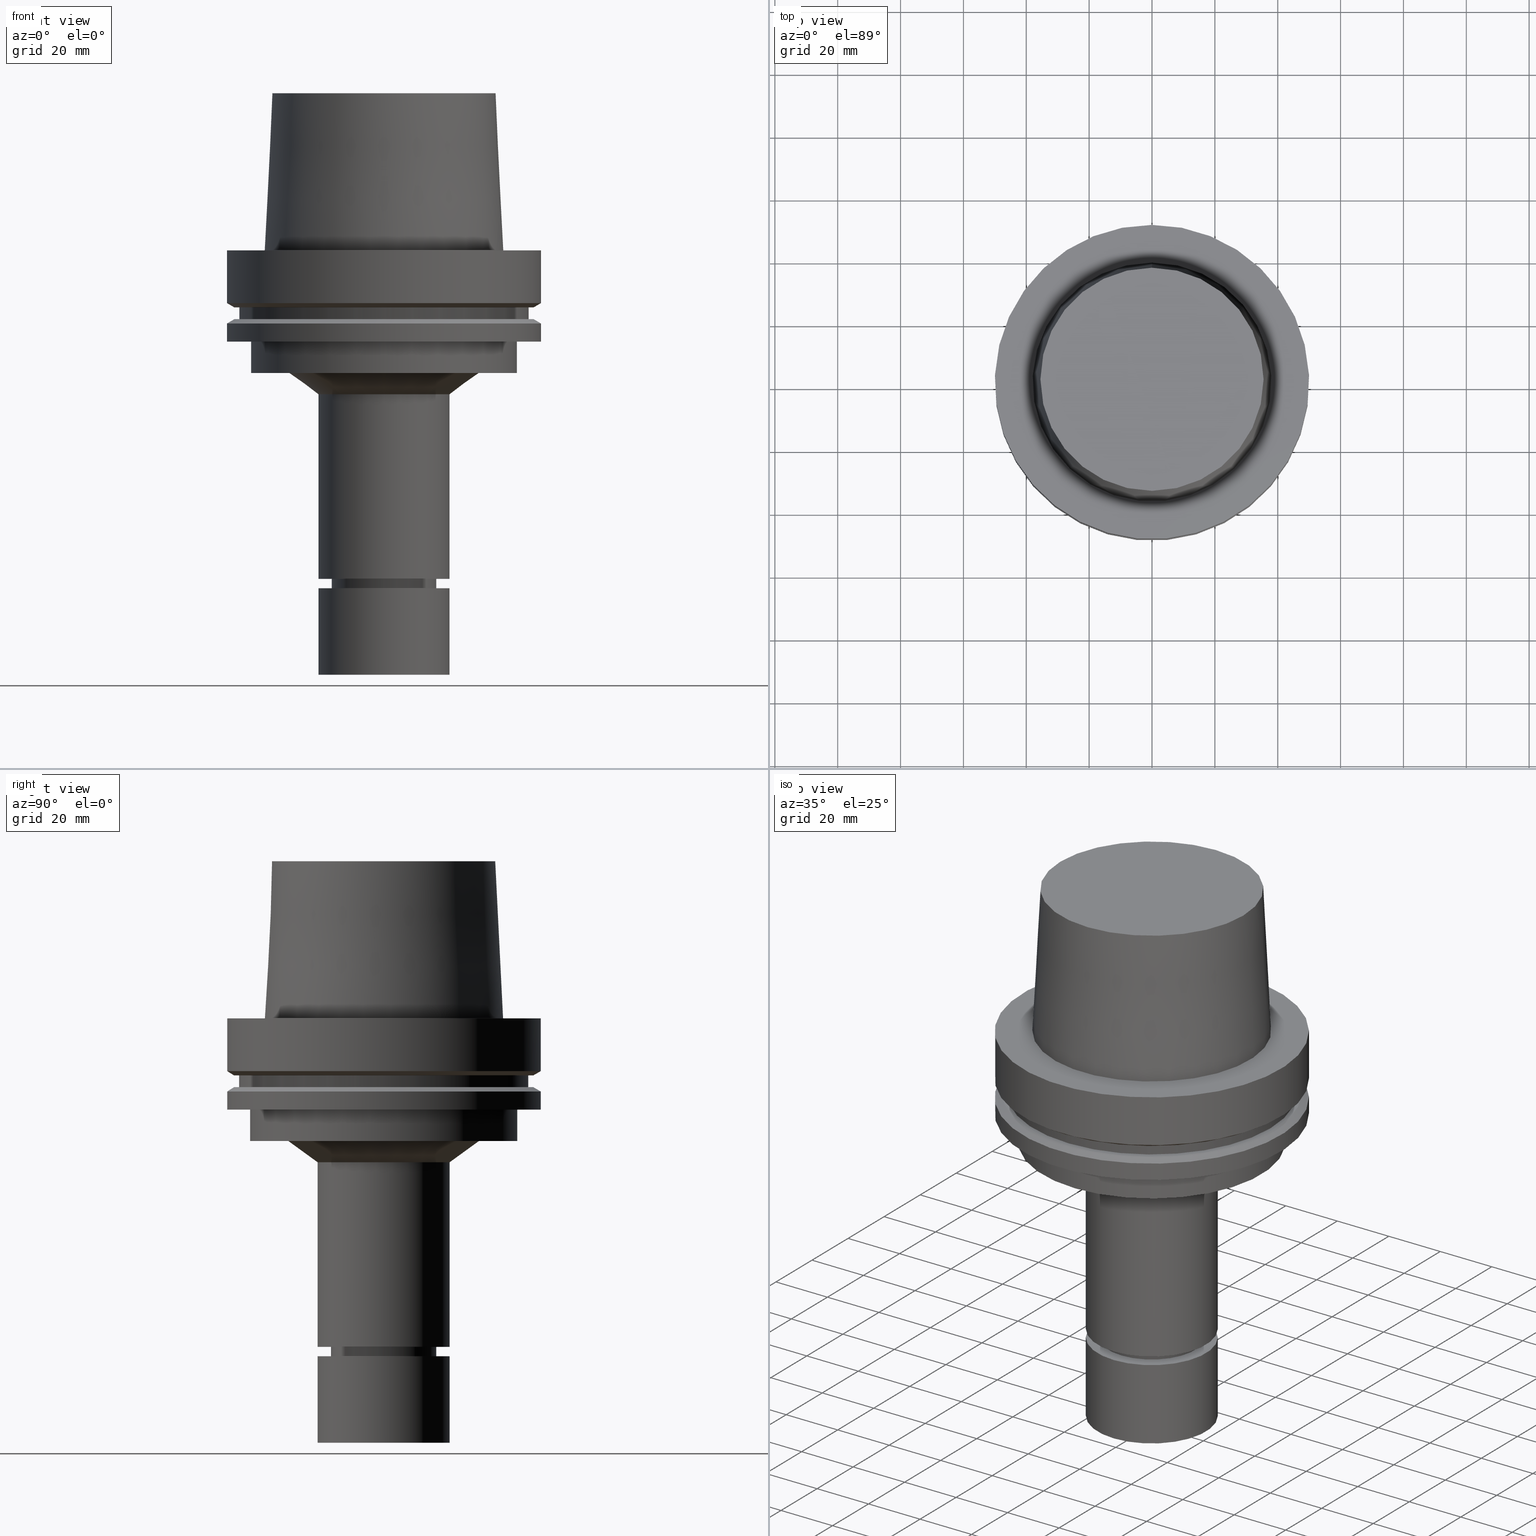
[diagram: canonical four-view strip — front | top / right | iso, engineering-drawing reading convention]
A machine part, canonical four-view strip (front | top / right | iso — engineering-drawing reading convention). The complete STEP part file that produces these views, byte-faithful:
ISO-10303-21;
HEADER;
FILE_DESCRIPTION((''),'1');
FILE_NAME('V:/90_\X2\53D65F9730C730FC30BF\X0\/00_\X2\6DE18DEF30C730FC30BF\X0\/ALL/HSK-BKUS\X2\52A05DE556F3\X0\_201801/HSK-A100-MEGAER/HSK-A100-MEGAER25-135NL.stp','2018-02-01T04:19:38',(''),(''),'Spatial Interop R21 SP3','Kubotek KeyCreator 2011 V10.0.2 (22737)',' ');
FILE_SCHEMA(('automotive_design'));
ENDSEC;
DATA;
#1=MECHANICAL_DESIGN_GEOMETRIC_PRESENTATION_REPRESENTATION(' ',(#14,#15,#16,#17,#18,#19,#20,#21,#22,#23,#24,#25,#26,#27,#28,#29,#30,#31,#32,#33,#34,#35,#36,#37,#38,#39,#40,#41,#42,#43,#44,#45,#46,#47,#48,#49,#50,#51,#52,#53,#54,#55,#56,#57,#58,#59,#60,#61),#10);
#2=PRODUCT_DEFINITION_CONTEXT('',#62,'design');
#3=APPLICATION_PROTOCOL_DEFINITION('INTERNATIONAL STANDARD','automotive_design',1994,#62);
#4=PRODUCT_CATEGORY_RELATIONSHIP('NONE','NONE',#63,#64);
#5=SHAPE_DEFINITION_REPRESENTATION(#65,#66);
#6=PRODUCT_DEFINITION_CONTEXT('',#67,'design');
#7=APPLICATION_PROTOCOL_DEFINITION('INTERNATIONAL STANDARD','automotive_design',1994,#67);
#8=PRODUCT_CATEGORY_RELATIONSHIP('NONE','NONE',#68,#69);
#9=SHAPE_DEFINITION_REPRESENTATION(#70,#71);
#10= (GEOMETRIC_REPRESENTATION_CONTEXT(3)GLOBAL_UNCERTAINTY_ASSIGNED_CONTEXT((#74))GLOBAL_UNIT_ASSIGNED_CONTEXT((#76,#77,#78))REPRESENTATION_CONTEXT('NONE','WORKSPACE'));
#14=STYLED_ITEM('',(#80),#81);
#15=STYLED_ITEM('',(#82),#83);
#16=STYLED_ITEM('',(#84),#85);
#17=STYLED_ITEM('',(#86,#87),#88);
#18=STYLED_ITEM('',(#89),#90);
#19=STYLED_ITEM('',(#91,#92),#93);
#20=STYLED_ITEM('',(#94,#95),#96);
#21=STYLED_ITEM('',(#97),#98);
#22=STYLED_ITEM('',(#99,#100),#101);
#23=STYLED_ITEM('',(#102,#103),#104);
#24=STYLED_ITEM('',(#105,#106),#107);
#25=STYLED_ITEM('',(#108,#109),#110);
#26=STYLED_ITEM('',(#111,#112),#113);
#27=STYLED_ITEM('',(#114),#115);
#28=STYLED_ITEM('',(#116),#117);
#29=STYLED_ITEM('',(#118,#119),#120);
#30=STYLED_ITEM('',(#121,#122),#123);
#31=STYLED_ITEM('',(#124,#125),#126);
#32=STYLED_ITEM('',(#127,#128),#129);
#33=STYLED_ITEM('',(#130,#131),#132);
#34=STYLED_ITEM('',(#133,#134),#135);
#35=STYLED_ITEM('',(#136,#137),#138);
#36=STYLED_ITEM('',(#139),#140);
#37=STYLED_ITEM('',(#141),#142);
#38=STYLED_ITEM('',(#143),#144);
#39=STYLED_ITEM('',(#145),#146);
#40=STYLED_ITEM('',(#147),#148);
#41=STYLED_ITEM('',(#149),#150);
#42=STYLED_ITEM('',(#151,#152),#153);
#43=STYLED_ITEM('',(#154,#155),#156);
#44=STYLED_ITEM('',(#157),#158);
#45=STYLED_ITEM('',(#159,#160),#161);
#46=STYLED_ITEM('',(#162),#163);
#47=STYLED_ITEM('',(#164,#165),#166);
#48=STYLED_ITEM('',(#167,#168),#169);
#49=STYLED_ITEM('',(#170),#171);
#50=STYLED_ITEM('',(#172,#173),#174);
#51=STYLED_ITEM('',(#175),#176);
#52=STYLED_ITEM('',(#177,#178),#179);
#53=STYLED_ITEM('',(#180),#181);
#54=STYLED_ITEM('',(#182,#183),#184);
#55=STYLED_ITEM('',(#185),#186);
#56=STYLED_ITEM('',(#187),#188);
#57=STYLED_ITEM('',(#189,#190),#191);
#58=STYLED_ITEM('',(#192,#193),#194);
#59=STYLED_ITEM('',(#195,#196),#197);
#60=STYLED_ITEM('',(#198),#199);
#61=STYLED_ITEM('',(#200),#201);
#62=APPLICATION_CONTEXT(' ');
#63=PRODUCT_CATEGORY('part','NONE');
#64=PRODUCT_RELATED_PRODUCT_CATEGORY('detail',' ',(#202));
#65=PRODUCT_DEFINITION_SHAPE('NONE','NONE',#203);
#66=ADVANCED_BREP_SHAPE_REPRESENTATION('Unnamed[1]',(#126,#204),#10);
#67=APPLICATION_CONTEXT(' ');
#68=PRODUCT_CATEGORY('part','NONE');
#69=PRODUCT_RELATED_PRODUCT_CATEGORY('detail',' ',(#205));
#70=PRODUCT_DEFINITION_SHAPE('NONE','NONE',#206);
#71=ADVANCED_BREP_SHAPE_REPRESENTATION('Unnamed[1]',(#161,#207),#10);
#74=UNCERTAINTY_MEASURE_WITH_UNIT(LENGTH_MEASURE(1.0E-006),#76,'','');
#76= (CONVERSION_BASED_UNIT('MILLIMETRE',#210)LENGTH_UNIT()NAMED_UNIT(#213));
#77= (NAMED_UNIT(#215)PLANE_ANGLE_UNIT()SI_UNIT($,.RADIAN.));
#78= (NAMED_UNIT(#215)SOLID_ANGLE_UNIT()SI_UNIT($,.STERADIAN.));
#80=PRESENTATION_STYLE_ASSIGNMENT((#221));
#81=EDGE_CURVE('Unnamed[1]',#222,#222,#223,.T.);
#82=PRESENTATION_STYLE_ASSIGNMENT((#224));
#83=EDGE_CURVE('Unnamed[1]',#225,#225,#226,.T.);
#84=PRESENTATION_STYLE_ASSIGNMENT((#227));
#85=EDGE_CURVE('Unnamed[1]',#228,#228,#229,.T.);
#86=PRESENTATION_STYLE_ASSIGNMENT((#230));
#87=PRESENTATION_STYLE_ASSIGNMENT((#231));
#88=ADVANCED_FACE('Unnamed[1]',(#232,#233),#234,.T.);
#89=PRESENTATION_STYLE_ASSIGNMENT((#235));
#90=EDGE_CURVE('Unnamed[1]',#236,#236,#237,.T.);
#91=PRESENTATION_STYLE_ASSIGNMENT((#238));
#92=PRESENTATION_STYLE_ASSIGNMENT((#239));
#93=ADVANCED_FACE('Unnamed[1]',(#240,#241),#242,.T.);
#94=PRESENTATION_STYLE_ASSIGNMENT((#243));
#95=PRESENTATION_STYLE_ASSIGNMENT((#244));
#96=ADVANCED_FACE('Unnamed[1]',(#245,#246),#247,.T.);
#97=PRESENTATION_STYLE_ASSIGNMENT((#248));
#98=EDGE_CURVE('Unnamed[1]',#249,#249,#250,.T.);
#99=PRESENTATION_STYLE_ASSIGNMENT((#251));
#100=PRESENTATION_STYLE_ASSIGNMENT((#252));
#101=ADVANCED_FACE('Unnamed[1]',(#253,#254),#255,.T.);
#102=PRESENTATION_STYLE_ASSIGNMENT((#256));
#103=PRESENTATION_STYLE_ASSIGNMENT((#257));
#104=ADVANCED_FACE('Unnamed[1]',(#258,#259),#260,.T.);
#105=PRESENTATION_STYLE_ASSIGNMENT((#261));
#106=PRESENTATION_STYLE_ASSIGNMENT((#262));
#107=ADVANCED_FACE('Unnamed[1]',(#263,#264),#265,.T.);
#108=PRESENTATION_STYLE_ASSIGNMENT((#266));
#109=PRESENTATION_STYLE_ASSIGNMENT((#267));
#110=ADVANCED_FACE('Unnamed[1]',(#268,#269),#270,.T.);
#111=PRESENTATION_STYLE_ASSIGNMENT((#271));
#112=PRESENTATION_STYLE_ASSIGNMENT((#272));
#113=ADVANCED_FACE('Unnamed[1]',(#273,#274),#275,.T.);
#114=PRESENTATION_STYLE_ASSIGNMENT((#276));
#115=EDGE_CURVE('Unnamed[1]',#277,#277,#278,.T.);
#116=PRESENTATION_STYLE_ASSIGNMENT((#279));
#117=EDGE_CURVE('Unnamed[1]',#280,#280,#281,.T.);
#118=PRESENTATION_STYLE_ASSIGNMENT((#282));
#119=PRESENTATION_STYLE_ASSIGNMENT((#283));
#120=ADVANCED_FACE('Unnamed[1]',(#284,#285),#286,.T.);
#121=PRESENTATION_STYLE_ASSIGNMENT((#287));
#122=PRESENTATION_STYLE_ASSIGNMENT((#288));
#123=ADVANCED_FACE('Unnamed[1]',(#289,#290),#291,.T.);
#124=PRESENTATION_STYLE_ASSIGNMENT((#292));
#125=PRESENTATION_STYLE_ASSIGNMENT((#293));
#126=MANIFOLD_SOLID_BREP('Unnamed[1]',#294);
#127=PRESENTATION_STYLE_ASSIGNMENT((#295));
#128=PRESENTATION_STYLE_ASSIGNMENT((#296));
#129=ADVANCED_FACE('Unnamed[1]',(#297),#298,.T.);
#130=PRESENTATION_STYLE_ASSIGNMENT((#299));
#131=PRESENTATION_STYLE_ASSIGNMENT((#300));
#132=ADVANCED_FACE('Unnamed[1]',(#301,#302),#303,.T.);
#133=PRESENTATION_STYLE_ASSIGNMENT((#304));
#134=PRESENTATION_STYLE_ASSIGNMENT((#305));
#135=ADVANCED_FACE('Unnamed[1]',(#306,#307),#308,.T.);
#136=PRESENTATION_STYLE_ASSIGNMENT((#309));
#137=PRESENTATION_STYLE_ASSIGNMENT((#310));
#138=ADVANCED_FACE('Unnamed[1]',(#311,#312),#313,.T.);
#139=PRESENTATION_STYLE_ASSIGNMENT((#314));
#140=EDGE_CURVE('Unnamed[1]',#315,#315,#316,.T.);
#141=PRESENTATION_STYLE_ASSIGNMENT((#317));
#142=EDGE_CURVE('Unnamed[1]',#318,#318,#319,.T.);
#143=PRESENTATION_STYLE_ASSIGNMENT((#320));
#144=EDGE_CURVE('Unnamed[1]',#321,#321,#322,.T.);
#145=PRESENTATION_STYLE_ASSIGNMENT((#323));
#146=EDGE_CURVE('Unnamed[1]',#324,#324,#325,.T.);
#147=PRESENTATION_STYLE_ASSIGNMENT((#326));
#148=EDGE_CURVE('Unnamed[1]',#327,#327,#328,.T.);
#149=PRESENTATION_STYLE_ASSIGNMENT((#329));
#150=EDGE_CURVE('Unnamed[1]',#330,#330,#331,.T.);
#151=PRESENTATION_STYLE_ASSIGNMENT((#332));
#152=PRESENTATION_STYLE_ASSIGNMENT((#333));
#153=ADVANCED_FACE('Unnamed[1]',(#334),#335,.T.);
#154=PRESENTATION_STYLE_ASSIGNMENT((#336));
#155=PRESENTATION_STYLE_ASSIGNMENT((#337));
#156=ADVANCED_FACE('Unnamed[1]',(#338,#339),#340,.T.);
#157=PRESENTATION_STYLE_ASSIGNMENT((#341));
#158=EDGE_CURVE('Unnamed[1]',#342,#342,#343,.T.);
#159=PRESENTATION_STYLE_ASSIGNMENT((#344));
#160=PRESENTATION_STYLE_ASSIGNMENT((#345));
#161=MANIFOLD_SOLID_BREP('Unnamed[1]',#346);
#162=PRESENTATION_STYLE_ASSIGNMENT((#347));
#163=EDGE_CURVE('Unnamed[1]',#348,#348,#349,.T.);
#164=PRESENTATION_STYLE_ASSIGNMENT((#350));
#165=PRESENTATION_STYLE_ASSIGNMENT((#351));
#166=ADVANCED_FACE('Unnamed[1]',(#352,#353),#354,.T.);
#167=PRESENTATION_STYLE_ASSIGNMENT((#355));
#168=PRESENTATION_STYLE_ASSIGNMENT((#356));
#169=ADVANCED_FACE('Unnamed[1]',(#357),#358,.T.);
#170=PRESENTATION_STYLE_ASSIGNMENT((#359));
#171=EDGE_CURVE('Unnamed[1]',#360,#360,#361,.T.);
#172=PRESENTATION_STYLE_ASSIGNMENT((#362));
#173=PRESENTATION_STYLE_ASSIGNMENT((#363));
#174=ADVANCED_FACE('Unnamed[1]',(#364,#365),#366,.T.);
#175=PRESENTATION_STYLE_ASSIGNMENT((#367));
#176=EDGE_CURVE('Unnamed[1]',#368,#368,#369,.T.);
#177=PRESENTATION_STYLE_ASSIGNMENT((#370));
#178=PRESENTATION_STYLE_ASSIGNMENT((#371));
#179=ADVANCED_FACE('Unnamed[1]',(#372,#373),#374,.T.);
#180=PRESENTATION_STYLE_ASSIGNMENT((#375));
#181=EDGE_CURVE('Unnamed[1]',#376,#376,#377,.T.);
#182=PRESENTATION_STYLE_ASSIGNMENT((#378));
#183=PRESENTATION_STYLE_ASSIGNMENT((#379));
#184=ADVANCED_FACE('Unnamed[1]',(#380,#381),#382,.T.);
#185=PRESENTATION_STYLE_ASSIGNMENT((#383));
#186=EDGE_CURVE('Unnamed[1]',#384,#384,#385,.T.);
#187=PRESENTATION_STYLE_ASSIGNMENT((#386));
#188=EDGE_CURVE('Unnamed[1]',#387,#387,#388,.T.);
#189=PRESENTATION_STYLE_ASSIGNMENT((#389));
#190=PRESENTATION_STYLE_ASSIGNMENT((#390));
#191=ADVANCED_FACE('Unnamed[1]',(#391),#392,.T.);
#192=PRESENTATION_STYLE_ASSIGNMENT((#393));
#193=PRESENTATION_STYLE_ASSIGNMENT((#394));
#194=ADVANCED_FACE('Unnamed[1]',(#395,#396),#397,.T.);
#195=PRESENTATION_STYLE_ASSIGNMENT((#398));
#196=PRESENTATION_STYLE_ASSIGNMENT((#399));
#197=ADVANCED_FACE('Unnamed[1]',(#400,#401),#402,.T.);
#198=PRESENTATION_STYLE_ASSIGNMENT((#403));
#199=EDGE_CURVE('Unnamed[1]',#404,#404,#405,.T.);
#200=PRESENTATION_STYLE_ASSIGNMENT((#406));
#201=EDGE_CURVE('Unnamed[1]',#407,#407,#408,.T.);
#202=PRODUCT('Unnamed[1]','Unnamed[1]','PART-Unnamed[1]-DESC',(#409));
#203=PRODUCT_DEFINITION('NONE','NONE',#410,#2);
#204=AXIS2_PLACEMENT_3D('',#411,#412,#413);
#205=PRODUCT('Unnamed[1]','Unnamed[1]','PART-Unnamed[1]-DESC',(#414));
#206=PRODUCT_DEFINITION('NONE','NONE',#415,#6);
#207=AXIS2_PLACEMENT_3D('',#416,#417,#418);
#210=LENGTH_MEASURE_WITH_UNIT(LENGTH_MEASURE(1.0),#419);
#213=DIMENSIONAL_EXPONENTS(1.0,0.0,0.0,0.0,0.0,0.0,0.0);
#215=DIMENSIONAL_EXPONENTS(0.0,0.0,0.0,0.0,0.0,0.0,0.0);
#221=CURVE_STYLE('',#420,POSITIVE_LENGTH_MEASURE(1000.0),#421);
#222=VERTEX_POINT('',#422);
#223=CIRCLE('',#423,16.7500000000017);
#224=CURVE_STYLE('',#424,POSITIVE_LENGTH_MEASURE(1000.0),#425);
#225=VERTEX_POINT('',#426);
#226=CIRCLE('',#427,46.0);
#227=CURVE_STYLE('',#428,POSITIVE_LENGTH_MEASURE(1000.0),#429);
#228=VERTEX_POINT('',#430);
#229=CIRCLE('',#431,50.0);
#230=SURFACE_STYLE_USAGE(.BOTH.,#432);
#231=CURVE_STYLE('',#433,POSITIVE_LENGTH_MEASURE(1000.0),#434);
#232=FACE_BOUND('',#435,.T.);
#233=FACE_BOUND('',#436,.T.);
#234=CONICAL_SURFACE('',#437,48.81129763,1.04719755328238);
#235=CURVE_STYLE('',#438,POSITIVE_LENGTH_MEASURE(1000.0),#439);
#236=VERTEX_POINT('',#440);
#237=CIRCLE('',#441,50.0);
#238=SURFACE_STYLE_USAGE(.BOTH.,#442);
#239=CURVE_STYLE('',#443,POSITIVE_LENGTH_MEASURE(1000.0),#444);
#240=FACE_BOUND('',#445,.T.);
#241=FACE_OUTER_BOUND('',#446,.T.);
#242=PLANE('',#447);
#243=SURFACE_STYLE_USAGE(.BOTH.,#448);
#244=CURVE_STYLE('',#449,POSITIVE_LENGTH_MEASURE(1000.0),#450);
#245=FACE_OUTER_BOUND('',#451,.T.);
#246=FACE_BOUND('',#452,.T.);
#247=PLANE('',#453);
#248=CURVE_STYLE('',#454,POSITIVE_LENGTH_MEASURE(1000.0),#455);
#249=VERTEX_POINT('',#456);
#250=CIRCLE('',#457,21.0);
#251=SURFACE_STYLE_USAGE(.BOTH.,#458);
#252=CURVE_STYLE('',#459,POSITIVE_LENGTH_MEASURE(1000.0),#460);
#253=FACE_BOUND('',#461,.T.);
#254=FACE_OUTER_BOUND('',#462,.T.);
#255=PLANE('',#463);
#256=SURFACE_STYLE_USAGE(.BOTH.,#464);
#257=CURVE_STYLE('',#465,POSITIVE_LENGTH_MEASURE(1000.0),#466);
#258=FACE_BOUND('',#467,.T.);
#259=FACE_OUTER_BOUND('',#468,.T.);
#260=PLANE('',#469);
#261=SURFACE_STYLE_USAGE(.BOTH.,#470);
#262=CURVE_STYLE('',#471,POSITIVE_LENGTH_MEASURE(1000.0),#472);
#263=FACE_BOUND('',#473,.T.);
#264=FACE_BOUND('',#474,.T.);
#265=CYLINDRICAL_SURFACE('',#475,42.5);
#266=SURFACE_STYLE_USAGE(.BOTH.,#476);
#267=CURVE_STYLE('',#477,POSITIVE_LENGTH_MEASURE(1000.0),#478);
#268=FACE_BOUND('',#479,.T.);
#269=FACE_BOUND('',#480,.T.);
#270=CONICAL_SURFACE('',#481,16.3750000000008,1.04719755120059);
#271=SURFACE_STYLE_USAGE(.BOTH.,#482);
#272=CURVE_STYLE('',#483,POSITIVE_LENGTH_MEASURE(1000.0),#484);
#273=FACE_BOUND('',#485,.T.);
#274=FACE_BOUND('',#486,.T.);
#275=CYLINDRICAL_SURFACE('',#487,16.0);
#276=CURVE_STYLE('',#488,POSITIVE_LENGTH_MEASURE(1000.0),#489);
#277=VERTEX_POINT('',#490);
#278=CIRCLE('',#491,47.62259526);
#279=CURVE_STYLE('',#492,POSITIVE_LENGTH_MEASURE(1000.0),#493);
#280=VERTEX_POINT('',#494);
#281=CIRCLE('',#495,50.0);
#282=SURFACE_STYLE_USAGE(.BOTH.,#496);
#283=CURVE_STYLE('',#497,POSITIVE_LENGTH_MEASURE(1000.0),#498);
#284=FACE_OUTER_BOUND('',#499,.T.);
#285=FACE_BOUND('',#500,.T.);
#286=PLANE('',#501);
#287=SURFACE_STYLE_USAGE(.BOTH.,#502);
#288=CURVE_STYLE('',#503,POSITIVE_LENGTH_MEASURE(1000.0),#504);
#289=FACE_BOUND('',#505,.T.);
#290=FACE_BOUND('',#506,.T.);
#291=CYLINDRICAL_SURFACE('',#507,16.7499999999962);
#292=SURFACE_STYLE_USAGE(.BOTH.,#508);
#293=CURVE_STYLE('',#509,POSITIVE_LENGTH_MEASURE(1000.0),#510);
#294=CLOSED_SHELL('',(#153,#166,#120,#174,#88,#101,#156,#96,#132,#184,#104,#107,#135,#197,#194,#93,#123,#110,#113,#138,#169));
#295=SURFACE_STYLE_USAGE(.BOTH.,#511);
#296=CURVE_STYLE('',#512,POSITIVE_LENGTH_MEASURE(1000.0),#513);
#297=FACE_OUTER_BOUND('',#514,.T.);
#298=PLANE('',#515);
#299=SURFACE_STYLE_USAGE(.BOTH.,#516);
#300=CURVE_STYLE('',#517,POSITIVE_LENGTH_MEASURE(1000.0),#518);
#301=FACE_BOUND('',#519,.T.);
#302=FACE_BOUND('',#520,.T.);
#303=CONICAL_SURFACE('',#521,48.81129763,1.04719755328238);
#304=SURFACE_STYLE_USAGE(.BOTH.,#522);
#305=CURVE_STYLE('',#523,POSITIVE_LENGTH_MEASURE(1000.0),#524);
#306=FACE_BOUND('',#525,.T.);
#307=FACE_OUTER_BOUND('',#526,.T.);
#308=PLANE('',#527);
#309=SURFACE_STYLE_USAGE(.BOTH.,#528);
#310=CURVE_STYLE('',#529,POSITIVE_LENGTH_MEASURE(1000.0),#530);
#311=FACE_BOUND('',#531,.T.);
#312=FACE_BOUND('',#532,.T.);
#313=CONICAL_SURFACE('',#533,15.4500000000003,0.523598775598048);
#314=CURVE_STYLE('',#534,POSITIVE_LENGTH_MEASURE(1000.0),#535);
#315=VERTEX_POINT('',#536);
#316=CIRCLE('',#537,35.5000000015618);
#317=CURVE_STYLE('',#538,POSITIVE_LENGTH_MEASURE(1000.0),#539);
#318=VERTEX_POINT('',#540);
#319=CIRCLE('',#541,46.0);
#320=CURVE_STYLE('',#542,POSITIVE_LENGTH_MEASURE(1000.0),#543);
#321=VERTEX_POINT('',#544);
#322=CIRCLE('',#545,30.3193294456062);
#323=CURVE_STYLE('',#546,POSITIVE_LENGTH_MEASURE(1000.0),#547);
#324=VERTEX_POINT('',#548);
#325=CIRCLE('',#549,20.9999999999999);
#326=CURVE_STYLE('',#550,POSITIVE_LENGTH_MEASURE(1000.0),#551);
#327=VERTEX_POINT('',#552);
#328=CIRCLE('',#553,50.0);
#329=CURVE_STYLE('',#554,POSITIVE_LENGTH_MEASURE(1000.0),#555);
#330=VERTEX_POINT('',#556);
#331=CIRCLE('',#557,16.7499999999907);
#332=SURFACE_STYLE_USAGE(.BOTH.,#558);
#333=CURVE_STYLE('',#559,POSITIVE_LENGTH_MEASURE(1000.0),#560);
#334=FACE_OUTER_BOUND('',#561,.T.);
#335=PLANE('',#562);
#336=SURFACE_STYLE_USAGE(.BOTH.,#563);
#337=CURVE_STYLE('',#564,POSITIVE_LENGTH_MEASURE(1000.0),#565);
#338=FACE_BOUND('',#566,.T.);
#339=FACE_BOUND('',#567,.T.);
#340=CYLINDRICAL_SURFACE('',#568,46.0);
#341=CURVE_STYLE('',#569,POSITIVE_LENGTH_MEASURE(1000.0),#570);
#342=VERTEX_POINT('',#571);
#343=CIRCLE('',#572,21.0000000000002);
#344=SURFACE_STYLE_USAGE(.BOTH.,#573);
#345=CURVE_STYLE('',#574,POSITIVE_LENGTH_MEASURE(1000.0),#575);
#346=CLOSED_SHELL('',(#129,#191,#179));
#347=CURVE_STYLE('',#576,POSITIVE_LENGTH_MEASURE(1000.0),#577);
#348=VERTEX_POINT('',#578);
#349=CIRCLE('',#579,16.0);
#350=SURFACE_STYLE_USAGE(.BOTH.,#580);
#351=CURVE_STYLE('',#581,POSITIVE_LENGTH_MEASURE(1000.0),#582);
#352=FACE_BOUND('',#583,.T.);
#353=FACE_BOUND('',#584,.T.);
#354=CONICAL_SURFACE('',#585,36.7500000007484,0.0499583956894843);
#355=SURFACE_STYLE_USAGE(.BOTH.,#586);
#356=CURVE_STYLE('',#587,POSITIVE_LENGTH_MEASURE(1000.0),#588);
#357=FACE_OUTER_BOUND('',#589,.T.);
#358=PLANE('',#590);
#359=CURVE_STYLE('',#591,POSITIVE_LENGTH_MEASURE(1000.0),#592);
#360=VERTEX_POINT('',#593);
#361=CIRCLE('',#594,42.5);
#362=SURFACE_STYLE_USAGE(.BOTH.,#595);
#363=CURVE_STYLE('',#596,POSITIVE_LENGTH_MEASURE(1000.0),#597);
#364=FACE_BOUND('',#598,.T.);
#365=FACE_BOUND('',#599,.T.);
#366=CYLINDRICAL_SURFACE('',#600,50.0);
#367=CURVE_STYLE('',#601,POSITIVE_LENGTH_MEASURE(1000.0),#602);
#368=VERTEX_POINT('',#603);
#369=CIRCLE('',#604,16.0);
#370=SURFACE_STYLE_USAGE(.BOTH.,#605);
#371=CURVE_STYLE('',#606,POSITIVE_LENGTH_MEASURE(1000.0),#607);
#372=FACE_BOUND('',#608,.T.);
#373=FACE_BOUND('',#609,.T.);
#374=CYLINDRICAL_SURFACE('',#610,21.0);
#375=CURVE_STYLE('',#611,POSITIVE_LENGTH_MEASURE(1000.0),#612);
#376=VERTEX_POINT('',#613);
#377=CIRCLE('',#614,21.0);
#378=SURFACE_STYLE_USAGE(.BOTH.,#615);
#379=CURVE_STYLE('',#616,POSITIVE_LENGTH_MEASURE(1000.0),#617);
#380=FACE_BOUND('',#618,.T.);
#381=FACE_BOUND('',#619,.T.);
#382=CYLINDRICAL_SURFACE('',#620,50.0);
#383=CURVE_STYLE('',#621,POSITIVE_LENGTH_MEASURE(1000.0),#622);
#384=VERTEX_POINT('',#623);
#385=CIRCLE('',#624,37.9999999999349);
#386=CURVE_STYLE('',#625,POSITIVE_LENGTH_MEASURE(1000.0),#626);
#387=VERTEX_POINT('',#627);
#388=CIRCLE('',#628,14.9000000000006);
#389=SURFACE_STYLE_USAGE(.BOTH.,#629);
#390=CURVE_STYLE('',#630,POSITIVE_LENGTH_MEASURE(1000.0),#631);
#391=FACE_OUTER_BOUND('',#632,.T.);
#392=PLANE('',#633);
#393=SURFACE_STYLE_USAGE(.BOTH.,#634);
#394=CURVE_STYLE('',#635,POSITIVE_LENGTH_MEASURE(1000.0),#636);
#395=FACE_BOUND('',#637,.T.);
#396=FACE_BOUND('',#638,.T.);
#397=CYLINDRICAL_SURFACE('',#639,21.0);
#398=SURFACE_STYLE_USAGE(.BOTH.,#640);
#399=CURVE_STYLE('',#641,POSITIVE_LENGTH_MEASURE(1000.0),#642);
#400=FACE_BOUND('',#643,.T.);
#401=FACE_BOUND('',#644,.T.);
#402=CONICAL_SURFACE('',#645,25.6596647228031,0.94291677670525);
#403=CURVE_STYLE('',#646,POSITIVE_LENGTH_MEASURE(1000.0),#647);
#404=VERTEX_POINT('',#648);
#405=CIRCLE('',#649,47.62259526);
#406=CURVE_STYLE('',#650,POSITIVE_LENGTH_MEASURE(1000.0),#651);
#407=VERTEX_POINT('',#652);
#408=CIRCLE('',#653,42.5);
#409=PRODUCT_CONTEXT('',#62,'mechanical');
#410=PRODUCT_DEFINITION_FORMATION_WITH_SPECIFIED_SOURCE(' ','NONE',#202,.NOT_KNOWN.);
#411=CARTESIAN_POINT('',(0.0,0.0,0.0));
#412=DIRECTION('',(0.0,0.0,1.0));
#413=DIRECTION('',(1.0,0.0,0.0));
#414=PRODUCT_CONTEXT('',#67,'mechanical');
#415=PRODUCT_DEFINITION_FORMATION_WITH_SPECIFIED_SOURCE(' ','NONE',#205,.NOT_KNOWN.);
#416=CARTESIAN_POINT('',(0.0,0.0,0.0));
#417=DIRECTION('',(0.0,0.0,1.0));
#418=DIRECTION('',(1.0,0.0,0.0));
#419= (NAMED_UNIT(#213)LENGTH_UNIT()SI_UNIT(.MILLI.,.METRE.));
#420=DRAUGHTING_PRE_DEFINED_CURVE_FONT('continuous');
#421=COLOUR_RGB('',0.0,1.0,0.0);
#422=CARTESIAN_POINT('',(6.7641727903392E-015,16.7500000000017,-110.467324865401));
#423=AXIS2_PLACEMENT_3D('',#655,#656,#657);
#424=DRAUGHTING_PRE_DEFINED_CURVE_FONT('continuous');
#425=COLOUR_RGB('',0.0,1.0,0.0);
#426=CARTESIAN_POINT('',(1.10983616172729E-015,46.0,-18.125));
#427=AXIS2_PLACEMENT_3D('',#658,#659,#660);
#428=DRAUGHTING_PRE_DEFINED_CURVE_FONT('continuous');
#429=COLOUR_RGB('',0.0,1.0,0.0);
#430=CARTESIAN_POINT('',(1.77573785876366E-015,50.0,-29.0));
#431=AXIS2_PLACEMENT_3D('',#661,#662,#663);
#432=SURFACE_SIDE_STYLE('',(#664));
#433=DRAUGHTING_PRE_DEFINED_CURVE_FONT('continuous');
#434=COLOUR_RGB('',0.0,1.0,0.0);
#435=EDGE_LOOP('',(#665));
#436=EDGE_LOOP('',(#666));
#437=AXIS2_PLACEMENT_3D('',#667,#668,#669);
#438=DRAUGHTING_PRE_DEFINED_CURVE_FONT('continuous');
#439=COLOUR_RGB('',0.0,1.0,0.0);
#440=CARTESIAN_POINT('',(1.0257889421431E-015,50.0,-16.75240474));
#441=AXIS2_PLACEMENT_3D('',#670,#671,#672);
#442=SURFACE_SIDE_STYLE('',(#673));
#443=DRAUGHTING_PRE_DEFINED_CURVE_FONT('continuous');
#444=COLOUR_RGB('',0.0,1.0,0.0);
#445=EDGE_LOOP('',(#674));
#446=EDGE_LOOP('',(#675));
#447=AXIS2_PLACEMENT_3D('',#676,#677,#678);
#448=SURFACE_SIDE_STYLE('',(#679));
#449=DRAUGHTING_PRE_DEFINED_CURVE_FONT('continuous');
#450=COLOUR_RGB('',0.0,1.0,0.0);
#451=EDGE_LOOP('',(#680));
#452=EDGE_LOOP('',(#681));
#453=AXIS2_PLACEMENT_3D('',#682,#683,#684);
#454=DRAUGHTING_PRE_DEFINED_CURVE_FONT('continuous');
#455=COLOUR_RGB('',0.0,1.0,0.0);
#456=CARTESIAN_POINT('',(8.26636589424463E-015,21.0,-135.0));
#457=AXIS2_PLACEMENT_3D('',#685,#686,#687);
#458=SURFACE_SIDE_STYLE('',(#688));
#459=DRAUGHTING_PRE_DEFINED_CURVE_FONT('continuous');
#460=COLOUR_RGB('',0.0,1.0,0.0);
#461=EDGE_LOOP('',(#689));
#462=EDGE_LOOP('',(#690));
#463=AXIS2_PLACEMENT_3D('',#691,#692,#693);
#464=SURFACE_SIDE_STYLE('',(#694));
#465=DRAUGHTING_PRE_DEFINED_CURVE_FONT('continuous');
#466=COLOUR_RGB('',0.0,1.0,0.0);
#467=EDGE_LOOP('',(#695));
#468=EDGE_LOOP('',(#696));
#469=AXIS2_PLACEMENT_3D('',#697,#698,#699);
#470=SURFACE_SIDE_STYLE('',(#700));
#471=DRAUGHTING_PRE_DEFINED_CURVE_FONT('continuous');
#472=COLOUR_RGB('',0.0,1.0,0.0);
#473=EDGE_LOOP('',(#701));
#474=EDGE_LOOP('',(#702));
#475=AXIS2_PLACEMENT_3D('',#703,#704,#705);
#476=SURFACE_SIDE_STYLE('',(#706));
#477=DRAUGHTING_PRE_DEFINED_CURVE_FONT('continuous');
#478=COLOUR_RGB('',0.0,1.0,0.0);
#479=EDGE_LOOP('',(#707));
#480=EDGE_LOOP('',(#708));
#481=AXIS2_PLACEMENT_3D('',#709,#710,#711);
#482=SURFACE_SIDE_STYLE('',(#712));
#483=DRAUGHTING_PRE_DEFINED_CURVE_FONT('continuous');
#484=COLOUR_RGB('',0.0,1.0,0.0);
#485=EDGE_LOOP('',(#713));
#486=EDGE_LOOP('',(#714));
#487=AXIS2_PLACEMENT_3D('',#715,#716,#717);
#488=DRAUGHTING_PRE_DEFINED_CURVE_FONT('continuous');
#489=COLOUR_RGB('',0.0,1.0,0.0);
#490=CARTESIAN_POINT('',(1.33945743656742E-015,47.62259526,-21.875));
#491=AXIS2_PLACEMENT_3D('',#718,#719,#720);
#492=DRAUGHTING_PRE_DEFINED_CURVE_FONT('continuous');
#493=COLOUR_RGB('',0.0,1.0,0.0);
#494=CARTESIAN_POINT('',(1.42350465615161E-015,50.0,-23.24759526));
#495=AXIS2_PLACEMENT_3D('',#721,#722,#723);
#496=SURFACE_SIDE_STYLE('',(#724));
#497=DRAUGHTING_PRE_DEFINED_CURVE_FONT('continuous');
#498=COLOUR_RGB('',0.0,1.0,0.0);
#499=EDGE_LOOP('',(#725));
#500=EDGE_LOOP('',(#726));
#501=AXIS2_PLACEMENT_3D('',#727,#728,#729);
#502=SURFACE_SIDE_STYLE('',(#730));
#503=DRAUGHTING_PRE_DEFINED_CURVE_FONT('continuous');
#504=COLOUR_RGB('',0.0,1.0,0.0);
#505=EDGE_LOOP('',(#731));
#506=EDGE_LOOP('',(#732));
#507=AXIS2_PLACEMENT_3D('',#733,#734,#735);
#508=SURFACE_SIDE_STYLE('',(#736));
#509=DRAUGHTING_PRE_DEFINED_CURVE_FONT('continuous');
#510=COLOUR_RGB('',0.0,1.0,0.0);
#511=SURFACE_SIDE_STYLE('',(#737));
#512=DRAUGHTING_PRE_DEFINED_CURVE_FONT('continuous');
#513=COLOUR_RGB('',0.0,1.0,0.0);
#514=EDGE_LOOP('',(#738));
#515=AXIS2_PLACEMENT_3D('',#739,#740,#741);
#516=SURFACE_SIDE_STYLE('',(#742));
#517=DRAUGHTING_PRE_DEFINED_CURVE_FONT('continuous');
#518=COLOUR_RGB('',0.0,1.0,0.0);
#519=EDGE_LOOP('',(#743));
#520=EDGE_LOOP('',(#744));
#521=AXIS2_PLACEMENT_3D('',#745,#746,#747);
#522=SURFACE_SIDE_STYLE('',(#748));
#523=DRAUGHTING_PRE_DEFINED_CURVE_FONT('continuous');
#524=COLOUR_RGB('',0.0,1.0,0.0);
#525=EDGE_LOOP('',(#749));
#526=EDGE_LOOP('',(#750));
#527=AXIS2_PLACEMENT_3D('',#751,#752,#753);
#528=SURFACE_SIDE_STYLE('',(#754));
#529=DRAUGHTING_PRE_DEFINED_CURVE_FONT('continuous');
#530=COLOUR_RGB('',0.0,1.0,0.0);
#531=EDGE_LOOP('',(#755));
#532=EDGE_LOOP('',(#756));
#533=AXIS2_PLACEMENT_3D('',#757,#758,#759);
#534=DRAUGHTING_PRE_DEFINED_CURVE_FONT('continuous');
#535=COLOUR_RGB('',0.0,1.0,0.0);
#536=CARTESIAN_POINT('',(-3.06161699786838E-015,35.5000000015618,50.0));
#537=AXIS2_PLACEMENT_3D('',#760,#761,#762);
#538=DRAUGHTING_PRE_DEFINED_CURVE_FONT('continuous');
#539=COLOUR_RGB('',0.0,1.0,0.0);
#540=CARTESIAN_POINT('',(1.33945743656742E-015,46.0,-21.875));
#541=AXIS2_PLACEMENT_3D('',#763,#764,#765);
#542=DRAUGHTING_PRE_DEFINED_CURVE_FONT('continuous');
#543=COLOUR_RGB('',0.0,1.0,0.0);
#544=CARTESIAN_POINT('',(2.38806125833734E-015,30.3193294456062,-39.0));
#545=AXIS2_PLACEMENT_3D('',#766,#767,#768);
#546=DRAUGHTING_PRE_DEFINED_CURVE_FONT('continuous');
#547=COLOUR_RGB('',0.0,1.0,0.0);
#548=CARTESIAN_POINT('',(2.80227603538635E-015,20.9999999999999,-45.7646406676179));
#549=AXIS2_PLACEMENT_3D('',#769,#770,#771);
#550=DRAUGHTING_PRE_DEFINED_CURVE_FONT('continuous');
#551=COLOUR_RGB('',0.0,1.0,0.0);
#552=CARTESIAN_POINT('',(-1.81547968506605E-031,50.0,-9.76766004263236E-016));
#553=AXIS2_PLACEMENT_3D('',#772,#773,#774);
#554=DRAUGHTING_PRE_DEFINED_CURVE_FONT('continuous');
#555=COLOUR_RGB('',0.0,1.0,0.0);
#556=CARTESIAN_POINT('',(6.39877952554487E-015,16.7499999999907,-104.499999999999));
#557=AXIS2_PLACEMENT_3D('',#775,#776,#777);
#558=SURFACE_SIDE_STYLE('',(#778));
#559=DRAUGHTING_PRE_DEFINED_CURVE_FONT('continuous');
#560=COLOUR_RGB('',0.0,1.0,0.0);
#561=EDGE_LOOP('',(#779));
#562=AXIS2_PLACEMENT_3D('',#780,#781,#782);
#563=SURFACE_SIDE_STYLE('',(#783));
#564=DRAUGHTING_PRE_DEFINED_CURVE_FONT('continuous');
#565=COLOUR_RGB('',0.0,1.0,0.0);
#566=EDGE_LOOP('',(#784));
#567=EDGE_LOOP('',(#785));
#568=AXIS2_PLACEMENT_3D('',#786,#787,#788);
#569=DRAUGHTING_PRE_DEFINED_CURVE_FONT('continuous');
#570=COLOUR_RGB('',0.0,1.0,0.0);
#571=CARTESIAN_POINT('',(6.39877952554491E-015,21.0000000000002,-104.5));
#572=AXIS2_PLACEMENT_3D('',#789,#790,#791);
#573=SURFACE_SIDE_STYLE('',(#792));
#574=DRAUGHTING_PRE_DEFINED_CURVE_FONT('continuous');
#575=COLOUR_RGB('',0.0,1.0,0.0);
#576=DRAUGHTING_PRE_DEFINED_CURVE_FONT('continuous');
#577=COLOUR_RGB('',0.0,1.0,0.0);
#578=CARTESIAN_POINT('',(6.79068717130714E-015,16.0,-110.90033756729));
#579=AXIS2_PLACEMENT_3D('',#793,#794,#795);
#580=SURFACE_SIDE_STYLE('',(#796));
#581=DRAUGHTING_PRE_DEFINED_CURVE_FONT('continuous');
#582=COLOUR_RGB('',0.0,1.0,0.0);
#583=EDGE_LOOP('',(#797));
#584=EDGE_LOOP('',(#798));
#585=AXIS2_PLACEMENT_3D('',#799,#800,#801);
#586=SURFACE_SIDE_STYLE('',(#802));
#587=DRAUGHTING_PRE_DEFINED_CURVE_FONT('continuous');
#588=COLOUR_RGB('',0.0,1.0,0.0);
#589=EDGE_LOOP('',(#803));
#590=AXIS2_PLACEMENT_3D('',#804,#805,#806);
#591=DRAUGHTING_PRE_DEFINED_CURVE_FONT('continuous');
#592=COLOUR_RGB('',0.0,1.0,0.0);
#593=CARTESIAN_POINT('',(2.38806125833734E-015,42.5,-39.0));
#594=AXIS2_PLACEMENT_3D('',#807,#808,#809);
#595=SURFACE_SIDE_STYLE('',(#810));
#596=DRAUGHTING_PRE_DEFINED_CURVE_FONT('continuous');
#597=COLOUR_RGB('',0.0,1.0,0.0);
#598=EDGE_LOOP('',(#811));
#599=EDGE_LOOP('',(#812));
#600=AXIS2_PLACEMENT_3D('',#813,#814,#815);
#601=DRAUGHTING_PRE_DEFINED_CURVE_FONT('continuous');
#602=COLOUR_RGB('',0.0,1.0,0.0);
#603=CARTESIAN_POINT('',(7.52513275041975E-015,16.0,-122.894744111674));
#604=AXIS2_PLACEMENT_3D('',#816,#817,#818);
#605=SURFACE_SIDE_STYLE('',(#819));
#606=DRAUGHTING_PRE_DEFINED_CURVE_FONT('continuous');
#607=COLOUR_RGB('',0.0,1.0,0.0);
#608=EDGE_LOOP('',(#820));
#609=EDGE_LOOP('',(#821));
#610=AXIS2_PLACEMENT_3D('',#822,#823,#824);
#611=DRAUGHTING_PRE_DEFINED_CURVE_FONT('continuous');
#612=COLOUR_RGB('',0.0,1.0,0.0);
#613=CARTESIAN_POINT('',(6.58247654541702E-015,21.0,-107.5));
#614=AXIS2_PLACEMENT_3D('',#825,#826,#827);
#615=SURFACE_SIDE_STYLE('',(#828));
#616=DRAUGHTING_PRE_DEFINED_CURVE_FONT('continuous');
#617=COLOUR_RGB('',0.0,1.0,0.0);
#618=EDGE_LOOP('',(#829));
#619=EDGE_LOOP('',(#830));
#620=AXIS2_PLACEMENT_3D('',#831,#832,#833);
#621=DRAUGHTING_PRE_DEFINED_CURVE_FONT('continuous');
#622=COLOUR_RGB('',0.0,1.0,0.0);
#623=CARTESIAN_POINT('',(-3.3636548776863E-032,37.9999999999349,-2.44634216324803E-015));
#624=AXIS2_PLACEMENT_3D('',#834,#835,#836);
#625=DRAUGHTING_PRE_DEFINED_CURVE_FONT('continuous');
#626=COLOUR_RGB('',0.0,1.0,0.0);
#627=CARTESIAN_POINT('',(7.6417960266795E-015,14.9000000000007,-124.8));
#628=AXIS2_PLACEMENT_3D('',#837,#838,#839);
#629=SURFACE_SIDE_STYLE('',(#840));
#630=DRAUGHTING_PRE_DEFINED_CURVE_FONT('continuous');
#631=COLOUR_RGB('',0.0,1.0,0.0);
#632=EDGE_LOOP('',(#841));
#633=AXIS2_PLACEMENT_3D('',#842,#843,#844);
#634=SURFACE_SIDE_STYLE('',(#845));
#635=DRAUGHTING_PRE_DEFINED_CURVE_FONT('continuous');
#636=COLOUR_RGB('',0.0,1.0,0.0);
#637=EDGE_LOOP('',(#846));
#638=EDGE_LOOP('',(#847));
#639=AXIS2_PLACEMENT_3D('',#848,#849,#850);
#640=SURFACE_SIDE_STYLE('',(#851));
#641=DRAUGHTING_PRE_DEFINED_CURVE_FONT('continuous');
#642=COLOUR_RGB('',0.0,1.0,0.0);
#643=EDGE_LOOP('',(#852));
#644=EDGE_LOOP('',(#853));
#645=AXIS2_PLACEMENT_3D('',#854,#855,#856);
#646=DRAUGHTING_PRE_DEFINED_CURVE_FONT('continuous');
#647=COLOUR_RGB('',0.0,1.0,0.0);
#648=CARTESIAN_POINT('',(1.10983616172729E-015,47.62259526,-18.125));
#649=AXIS2_PLACEMENT_3D('',#857,#858,#859);
#650=DRAUGHTING_PRE_DEFINED_CURVE_FONT('continuous');
#651=COLOUR_RGB('',0.0,1.0,0.0);
#652=CARTESIAN_POINT('',(1.77573785876366E-015,42.5,-29.0));
#653=AXIS2_PLACEMENT_3D('',#860,#861,#862);
#655=CARTESIAN_POINT('',(6.7641727903392E-015,1.35283455806784E-014,-110.467324865401));
#656=DIRECTION('',(6.12323399573677E-017,1.22464679914721E-016,-1.0));
#657=DIRECTION('',(-1.23259516440771E-032,1.0,1.22464679914721E-016));
#658=CARTESIAN_POINT('',(1.10983616172729E-015,2.21967232345458E-015,-18.125));
#659=DIRECTION('',(6.12323399573677E-017,1.22464679914716E-016,-1.0));
#660=DIRECTION('',(-1.23259516440783E-032,1.0,1.22464679914716E-016));
#661=CARTESIAN_POINT('',(1.77573785876366E-015,3.55147571752733E-015,-29.0));
#662=DIRECTION('',(6.12323399573677E-017,1.22464679914672E-016,-1.0));
#663=DIRECTION('',(-1.23259516440783E-032,1.0,1.22464679914672E-016));
#664=SURFACE_STYLE_FILL_AREA(#863);
#665=ORIENTED_EDGE('',*,*,#199,.F.);
#666=ORIENTED_EDGE('',*,*,#90,.T.);
#667=CARTESIAN_POINT('',(1.06781255193519E-015,2.13562510387038E-015,-17.43870237));
#668=DIRECTION('',(-6.12323399573677E-017,-1.22464679914711E-016,1.0));
#669=DIRECTION('',(-1.23259516440755E-032,1.0,1.22464679914711E-016));
#670=CARTESIAN_POINT('',(1.0257889421431E-015,2.05157788428619E-015,-16.75240474));
#671=DIRECTION('',(6.12323399573677E-017,1.22464679914672E-016,-1.0));
#672=DIRECTION('',(-1.23259516440783E-032,1.0,1.22464679914672E-016));
#673=SURFACE_STYLE_FILL_AREA(#864);
#674=ORIENTED_EDGE('',*,*,#150,.F.);
#675=ORIENTED_EDGE('',*,*,#158,.T.);
#676=CARTESIAN_POINT('',(6.39877952554489E-015,18.8749999999955,-104.5));
#677=DIRECTION('',(6.12323399573677E-017,-1.63720330859697E-013,-1.0));
#678=DIRECTION('',(1.00201518044029E-029,1.0,-1.63720330859697E-013));
#679=SURFACE_STYLE_FILL_AREA(#865);
#680=ORIENTED_EDGE('',*,*,#115,.F.);
#681=ORIENTED_EDGE('',*,*,#142,.T.);
#682=CARTESIAN_POINT('',(1.33945743656742E-015,46.81129763,-21.875));
#683=DIRECTION('',(-6.12323399573677E-017,-1.22464679914735E-016,1.0));
#684=DIRECTION('',(1.23259516440783E-032,-1.0,-1.22464679914735E-016));
#685=CARTESIAN_POINT('',(8.26636589424463E-015,1.65327317884893E-014,-135.0));
#686=DIRECTION('',(6.12323399573677E-017,1.22464679914735E-016,-1.0));
#687=DIRECTION('',(-1.23259516440783E-032,1.0,1.22464679914735E-016));
#688=SURFACE_STYLE_FILL_AREA(#866);
#689=ORIENTED_EDGE('',*,*,#83,.F.);
#690=ORIENTED_EDGE('',*,*,#199,.T.);
#691=CARTESIAN_POINT('',(1.10983616172729E-015,46.81129763,-18.125));
#692=DIRECTION('',(6.12323399573677E-017,1.22464679914735E-016,-1.0));
#693=DIRECTION('',(-1.23259516440783E-032,1.0,1.22464679914735E-016));
#694=SURFACE_STYLE_FILL_AREA(#867);
#695=ORIENTED_EDGE('',*,*,#201,.F.);
#696=ORIENTED_EDGE('',*,*,#85,.T.);
#697=CARTESIAN_POINT('',(1.77573785876366E-015,46.25,-29.0));
#698=DIRECTION('',(6.12323399573677E-017,1.22464679914735E-016,-1.0));
#699=DIRECTION('',(-1.23259516440783E-032,1.0,1.22464679914735E-016));
#700=SURFACE_STYLE_FILL_AREA(#868);
#701=ORIENTED_EDGE('',*,*,#171,.F.);
#702=ORIENTED_EDGE('',*,*,#201,.T.);
#703=CARTESIAN_POINT('',(2.0818995585505E-015,4.163799117101E-015,-34.0));
#704=DIRECTION('',(6.12323399573677E-017,1.22464679914687E-016,-1.0));
#705=DIRECTION('',(-1.23259516440783E-032,1.0,1.22464679914687E-016));
#706=SURFACE_STYLE_FILL_AREA(#869);
#707=ORIENTED_EDGE('',*,*,#163,.F.);
#708=ORIENTED_EDGE('',*,*,#81,.T.);
#709=CARTESIAN_POINT('',(6.77742998082317E-015,1.35548599616463E-014,-110.683831216345));
#710=DIRECTION('',(-6.12323399573677E-017,-1.22464679914691E-016,1.0));
#711=DIRECTION('',(-1.23259516440777E-032,1.0,1.22464679914691E-016));
#712=SURFACE_STYLE_FILL_AREA(#870);
#713=ORIENTED_EDGE('',*,*,#176,.F.);
#714=ORIENTED_EDGE('',*,*,#163,.T.);
#715=CARTESIAN_POINT('',(7.15790996086345E-015,1.43158199217269E-014,-116.897540839482));
#716=DIRECTION('',(6.12323399573677E-017,1.2246467991476E-016,-1.0));
#717=DIRECTION('',(-1.23259516440783E-032,1.0,1.2246467991476E-016));
#718=CARTESIAN_POINT('',(1.33945743656742E-015,2.67891487313484E-015,-21.875));
#719=DIRECTION('',(6.12323399573676E-017,1.22464679914752E-016,-1.0));
#720=DIRECTION('',(-1.23259516440801E-032,1.0,1.22464679914752E-016));
#721=CARTESIAN_POINT('',(1.42350465615161E-015,2.84700931230322E-015,-23.24759526));
#722=DIRECTION('',(6.12323399573677E-017,1.22464679914672E-016,-1.0));
#723=DIRECTION('',(-1.23259516440783E-032,1.0,1.22464679914672E-016));
#724=SURFACE_STYLE_FILL_AREA(#871);
#725=ORIENTED_EDGE('',*,*,#148,.F.);
#726=ORIENTED_EDGE('',*,*,#186,.T.);
#727=CARTESIAN_POINT('',(-1.07592258641734E-031,43.9999999999675,-1.71155408375563E-015));
#728=DIRECTION('',(-6.12323399573677E-017,-1.22464679914735E-016,1.0));
#729=DIRECTION('',(1.23259516440783E-032,-1.0,-1.22464679914735E-016));
#730=SURFACE_STYLE_FILL_AREA(#872);
#731=ORIENTED_EDGE('',*,*,#81,.F.);
#732=ORIENTED_EDGE('',*,*,#150,.T.);
#733=CARTESIAN_POINT('',(6.58147615794204E-015,1.31629523158841E-014,-107.4836624327));
#734=DIRECTION('',(6.12323399573676E-017,1.22464679914761E-016,-1.0));
#735=DIRECTION('',(-1.23259516440758E-032,1.0,1.22464679914761E-016));
#736=SURFACE_STYLE_FILL_AREA(#873);
#737=SURFACE_STYLE_FILL_AREA(#874);
#738=ORIENTED_EDGE('',*,*,#98,.T.);
#739=CARTESIAN_POINT('',(8.26636589424463E-015,10.5,-135.0));
#740=DIRECTION('',(6.12323399573677E-017,1.22464679914735E-016,-1.0));
#741=DIRECTION('',(-1.23259516440783E-032,1.0,1.22464679914735E-016));
#742=SURFACE_STYLE_FILL_AREA(#875);
#743=ORIENTED_EDGE('',*,*,#117,.F.);
#744=ORIENTED_EDGE('',*,*,#115,.T.);
#745=CARTESIAN_POINT('',(1.38148104635951E-015,2.76296209271903E-015,-22.56129763));
#746=DIRECTION('',(6.12323399573677E-017,1.22464679914711E-016,-1.0));
#747=DIRECTION('',(-1.23259516440755E-032,1.0,1.22464679914711E-016));
#748=SURFACE_STYLE_FILL_AREA(#876);
#749=ORIENTED_EDGE('',*,*,#144,.F.);
#750=ORIENTED_EDGE('',*,*,#171,.T.);
#751=CARTESIAN_POINT('',(2.38806125833734E-015,36.4096647228031,-39.0));
#752=DIRECTION('',(6.12323399573677E-017,1.22464679914735E-016,-1.0));
#753=DIRECTION('',(-1.23259516440783E-032,1.0,1.22464679914735E-016));
#754=SURFACE_STYLE_FILL_AREA(#877);
#755=ORIENTED_EDGE('',*,*,#188,.F.);
#756=ORIENTED_EDGE('',*,*,#176,.T.);
#757=CARTESIAN_POINT('',(7.58346438854962E-015,1.51669287770992E-014,-123.847372055837));
#758=DIRECTION('',(-6.12323399573677E-017,-1.22464679914738E-016,1.0));
#759=DIRECTION('',(-1.23259516440757E-032,1.0,1.22464679914738E-016));
#760=CARTESIAN_POINT('',(-3.06161699786838E-015,-6.12323399573676E-015,50.0));
#761=DIRECTION('',(6.12323399573677E-017,1.22464679914774E-016,-1.0));
#762=DIRECTION('',(-1.23259516440817E-032,1.0,1.22464679914774E-016));
#763=CARTESIAN_POINT('',(1.33945743656742E-015,2.67891487313484E-015,-21.875));
#764=DIRECTION('',(6.12323399573677E-017,1.22464679914716E-016,-1.0));
#765=DIRECTION('',(-1.23259516440783E-032,1.0,1.22464679914716E-016));
#766=CARTESIAN_POINT('',(2.38806125833734E-015,4.77612251667468E-015,-39.0));
#767=DIRECTION('',(6.12323399573677E-017,1.22464679914723E-016,-1.0));
#768=DIRECTION('',(-1.23259516440756E-032,1.0,1.22464679914723E-016));
#769=CARTESIAN_POINT('',(2.80227603538635E-015,5.60455207077271E-015,-45.7646406676179));
#770=DIRECTION('',(6.12323399573677E-017,1.22464679914771E-016,-1.0));
#771=DIRECTION('',(-1.23259516440784E-032,1.0,1.22464679914771E-016));
#772=CARTESIAN_POINT('',(0.0,0.0,0.0));
#773=DIRECTION('',(6.12323399573677E-017,1.22464679914672E-016,-1.0));
#774=DIRECTION('',(-1.23259516440783E-032,1.0,1.22464679914672E-016));
#775=CARTESIAN_POINT('',(6.39877952554487E-015,1.27975590510897E-014,-104.499999999999));
#776=DIRECTION('',(6.12323399573677E-017,1.22464679914705E-016,-1.0));
#777=DIRECTION('',(-1.23259516440798E-032,1.0,1.22464679914705E-016));
#778=SURFACE_STYLE_FILL_AREA(#878);
#779=ORIENTED_EDGE('',*,*,#140,.F.);
#780=CARTESIAN_POINT('',(-3.06161699786838E-015,17.7500000007809,50.0));
#781=DIRECTION('',(-6.12323399573677E-017,-1.22464679914735E-016,1.0));
#782=DIRECTION('',(1.23259516440783E-032,-1.0,-1.22464679914735E-016));
#783=SURFACE_STYLE_FILL_AREA(#879);
#784=ORIENTED_EDGE('',*,*,#142,.F.);
#785=ORIENTED_EDGE('',*,*,#83,.T.);
#786=CARTESIAN_POINT('',(1.22464679914735E-015,2.44929359829471E-015,-20.0));
#787=DIRECTION('',(6.12323399573677E-017,1.22464679914716E-016,-1.0));
#788=DIRECTION('',(-1.23259516440783E-032,1.0,1.22464679914716E-016));
#789=CARTESIAN_POINT('',(6.39877952554491E-015,1.27975590510898E-014,-104.5));
#790=DIRECTION('',(6.12323399573677E-017,1.22464679914769E-016,-1.0));
#791=DIRECTION('',(-1.23259516440782E-032,1.0,1.22464679914769E-016));
#792=SURFACE_STYLE_FILL_AREA(#880);
#793=CARTESIAN_POINT('',(6.79068717130714E-015,1.35813743426143E-014,-110.90033756729));
#794=DIRECTION('',(6.12323399573677E-017,1.2246467991476E-016,-1.0));
#795=DIRECTION('',(-1.23259516440783E-032,1.0,1.2246467991476E-016));
#796=SURFACE_STYLE_FILL_AREA(#881);
#797=ORIENTED_EDGE('',*,*,#186,.F.);
#798=ORIENTED_EDGE('',*,*,#140,.T.);
#799=CARTESIAN_POINT('',(-1.53080849893419E-015,-3.06161699786838E-015,25.0));
#800=DIRECTION('',(6.12323399573676E-017,1.22464679914694E-016,-1.0));
#801=DIRECTION('',(-1.23259516440811E-032,1.0,1.22464679914694E-016));
#802=SURFACE_STYLE_FILL_AREA(#882);
#803=ORIENTED_EDGE('',*,*,#188,.T.);
#804=CARTESIAN_POINT('',(7.64179602667948E-015,7.45000000000034,-124.8));
#805=DIRECTION('',(6.12323399573677E-017,-2.9443743116813E-014,-1.0));
#806=DIRECTION('',(1.79808213541533E-030,1.0,-2.9443743116813E-014));
#807=CARTESIAN_POINT('',(2.38806125833734E-015,4.77612251667468E-015,-39.0));
#808=DIRECTION('',(6.12323399573677E-017,1.22464679914687E-016,-1.0));
#809=DIRECTION('',(-1.23259516440783E-032,1.0,1.22464679914687E-016));
#810=SURFACE_STYLE_FILL_AREA(#883);
#811=ORIENTED_EDGE('',*,*,#90,.F.);
#812=ORIENTED_EDGE('',*,*,#148,.T.);
#813=CARTESIAN_POINT('',(5.12894471071548E-016,1.0257889421431E-015,-8.37620236999999));
#814=DIRECTION('',(6.12323399573677E-017,1.22464679914672E-016,-1.0));
#815=DIRECTION('',(-1.23259516440783E-032,1.0,1.22464679914672E-016));
#816=CARTESIAN_POINT('',(7.52513275041975E-015,1.50502655008395E-014,-122.894744111674));
#817=DIRECTION('',(6.12323399573677E-017,1.2246467991476E-016,-1.0));
#818=DIRECTION('',(-1.23259516440783E-032,1.0,1.2246467991476E-016));
#819=SURFACE_STYLE_FILL_AREA(#884);
#820=ORIENTED_EDGE('',*,*,#98,.F.);
#821=ORIENTED_EDGE('',*,*,#181,.T.);
#822=CARTESIAN_POINT('',(7.42442121983083E-015,1.48488424396617E-014,-121.25));
#823=DIRECTION('',(6.12323399573677E-017,1.22464679914735E-016,-1.0));
#824=DIRECTION('',(-1.23259516440783E-032,1.0,1.22464679914735E-016));
#825=CARTESIAN_POINT('',(6.58247654541702E-015,1.3164953090834E-014,-107.5));
#826=DIRECTION('',(6.12323399573677E-017,1.22464679914735E-016,-1.0));
#827=DIRECTION('',(-1.23259516440783E-032,1.0,1.22464679914735E-016));
#828=SURFACE_STYLE_FILL_AREA(#885);
#829=ORIENTED_EDGE('',*,*,#85,.F.);
#830=ORIENTED_EDGE('',*,*,#117,.T.);
#831=CARTESIAN_POINT('',(1.59962125745764E-015,3.19924251491527E-015,-26.12379763));
#832=DIRECTION('',(6.12323399573677E-017,1.22464679914672E-016,-1.0));
#833=DIRECTION('',(-1.23259516440783E-032,1.0,1.22464679914672E-016));
#834=CARTESIAN_POINT('',(0.0,0.0,0.0));
#835=DIRECTION('',(6.12323399573677E-017,1.22464679914704E-016,-1.0));
#836=DIRECTION('',(-1.23259516440805E-032,1.0,1.22464679914704E-016));
#837=CARTESIAN_POINT('',(7.6417960266795E-015,1.5283592053359E-014,-124.8));
#838=DIRECTION('',(6.12323399573677E-017,1.22464679914713E-016,-1.0));
#839=DIRECTION('',(-1.2325951644079E-032,1.0,1.22464679914713E-016));
#840=SURFACE_STYLE_FILL_AREA(#886);
#841=ORIENTED_EDGE('',*,*,#181,.F.);
#842=CARTESIAN_POINT('',(6.58247654541702E-015,10.5,-107.5));
#843=DIRECTION('',(-6.12323399573677E-017,-1.22464679914735E-016,1.0));
#844=DIRECTION('',(1.23259516440783E-032,-1.0,-1.22464679914735E-016));
#845=SURFACE_STYLE_FILL_AREA(#887);
#846=ORIENTED_EDGE('',*,*,#158,.F.);
#847=ORIENTED_EDGE('',*,*,#146,.T.);
#848=CARTESIAN_POINT('',(4.60052778046563E-015,9.20105556093127E-015,-75.1323203338089));
#849=DIRECTION('',(6.12323399573677E-017,1.2246467991477E-016,-1.0));
#850=DIRECTION('',(-1.23259516440783E-032,1.0,1.2246467991477E-016));
#851=SURFACE_STYLE_FILL_AREA(#888);
#852=ORIENTED_EDGE('',*,*,#146,.F.);
#853=ORIENTED_EDGE('',*,*,#144,.T.);
#854=CARTESIAN_POINT('',(2.59516864686185E-015,5.19033729372369E-015,-42.382320333809));
#855=DIRECTION('',(-6.12323399573677E-017,-1.22464679914743E-016,1.0));
#856=DIRECTION('',(-1.23259516440767E-032,1.0,1.22464679914743E-016));
#857=CARTESIAN_POINT('',(1.10983616172729E-015,2.21967232345458E-015,-18.125));
#858=DIRECTION('',(6.12323399573676E-017,1.22464679914752E-016,-1.0));
#859=DIRECTION('',(-1.23259516440801E-032,1.0,1.22464679914752E-016));
#860=CARTESIAN_POINT('',(1.77573785876366E-015,3.55147571752733E-015,-29.0));
#861=DIRECTION('',(6.12323399573677E-017,1.22464679914687E-016,-1.0));
#862=DIRECTION('',(-1.23259516440783E-032,1.0,1.22464679914687E-016));
#863=FILL_AREA_STYLE('',(#889));
#864=FILL_AREA_STYLE('',(#890));
#865=FILL_AREA_STYLE('',(#891));
#866=FILL_AREA_STYLE('',(#892));
#867=FILL_AREA_STYLE('',(#893));
#868=FILL_AREA_STYLE('',(#894));
#869=FILL_AREA_STYLE('',(#895));
#870=FILL_AREA_STYLE('',(#896));
#871=FILL_AREA_STYLE('',(#897));
#872=FILL_AREA_STYLE('',(#898));
#873=FILL_AREA_STYLE('',(#899));
#874=FILL_AREA_STYLE('',(#900));
#875=FILL_AREA_STYLE('',(#901));
#876=FILL_AREA_STYLE('',(#902));
#877=FILL_AREA_STYLE('',(#903));
#878=FILL_AREA_STYLE('',(#904));
#879=FILL_AREA_STYLE('',(#905));
#880=FILL_AREA_STYLE('',(#906));
#881=FILL_AREA_STYLE('',(#907));
#882=FILL_AREA_STYLE('',(#908));
#883=FILL_AREA_STYLE('',(#909));
#884=FILL_AREA_STYLE('',(#910));
#885=FILL_AREA_STYLE('',(#911));
#886=FILL_AREA_STYLE('',(#912));
#887=FILL_AREA_STYLE('',(#913));
#888=FILL_AREA_STYLE('',(#914));
#889=FILL_AREA_STYLE_COLOUR('',#915);
#890=FILL_AREA_STYLE_COLOUR('',#916);
#891=FILL_AREA_STYLE_COLOUR('',#917);
#892=FILL_AREA_STYLE_COLOUR('',#918);
#893=FILL_AREA_STYLE_COLOUR('',#919);
#894=FILL_AREA_STYLE_COLOUR('',#920);
#895=FILL_AREA_STYLE_COLOUR('',#921);
#896=FILL_AREA_STYLE_COLOUR('',#922);
#897=FILL_AREA_STYLE_COLOUR('',#923);
#898=FILL_AREA_STYLE_COLOUR('',#924);
#899=FILL_AREA_STYLE_COLOUR('',#925);
#900=FILL_AREA_STYLE_COLOUR('',#926);
#901=FILL_AREA_STYLE_COLOUR('',#927);
#902=FILL_AREA_STYLE_COLOUR('',#928);
#903=FILL_AREA_STYLE_COLOUR('',#929);
#904=FILL_AREA_STYLE_COLOUR('',#930);
#905=FILL_AREA_STYLE_COLOUR('',#931);
#906=FILL_AREA_STYLE_COLOUR('',#932);
#907=FILL_AREA_STYLE_COLOUR('',#933);
#908=FILL_AREA_STYLE_COLOUR('',#934);
#909=FILL_AREA_STYLE_COLOUR('',#935);
#910=FILL_AREA_STYLE_COLOUR('',#936);
#911=FILL_AREA_STYLE_COLOUR('',#937);
#912=FILL_AREA_STYLE_COLOUR('',#938);
#913=FILL_AREA_STYLE_COLOUR('',#939);
#914=FILL_AREA_STYLE_COLOUR('',#940);
#915=COLOUR_RGB('',0.0,1.0,0.0);
#916=COLOUR_RGB('',0.0,1.0,0.0);
#917=COLOUR_RGB('',0.0,1.0,0.0);
#918=COLOUR_RGB('',0.0,1.0,0.0);
#919=COLOUR_RGB('',0.0,1.0,0.0);
#920=COLOUR_RGB('',0.0,1.0,0.0);
#921=COLOUR_RGB('',0.0,1.0,0.0);
#922=COLOUR_RGB('',0.0,1.0,0.0);
#923=COLOUR_RGB('',0.0,1.0,0.0);
#924=COLOUR_RGB('',0.0,1.0,0.0);
#925=COLOUR_RGB('',0.0,1.0,0.0);
#926=COLOUR_RGB('',0.0,1.0,0.0);
#927=COLOUR_RGB('',0.0,1.0,0.0);
#928=COLOUR_RGB('',0.0,1.0,0.0);
#929=COLOUR_RGB('',0.0,1.0,0.0);
#930=COLOUR_RGB('',0.0,1.0,0.0);
#931=COLOUR_RGB('',0.0,1.0,0.0);
#932=COLOUR_RGB('',0.0,1.0,0.0);
#933=COLOUR_RGB('',0.0,1.0,0.0);
#934=COLOUR_RGB('',0.0,1.0,0.0);
#935=COLOUR_RGB('',0.0,1.0,0.0);
#936=COLOUR_RGB('',0.0,1.0,0.0);
#937=COLOUR_RGB('',0.0,1.0,0.0);
#938=COLOUR_RGB('',0.0,1.0,0.0);
#939=COLOUR_RGB('',0.0,1.0,0.0);
#940=COLOUR_RGB('',0.0,1.0,0.0);
ENDSEC;
END-ISO-10303-21;
